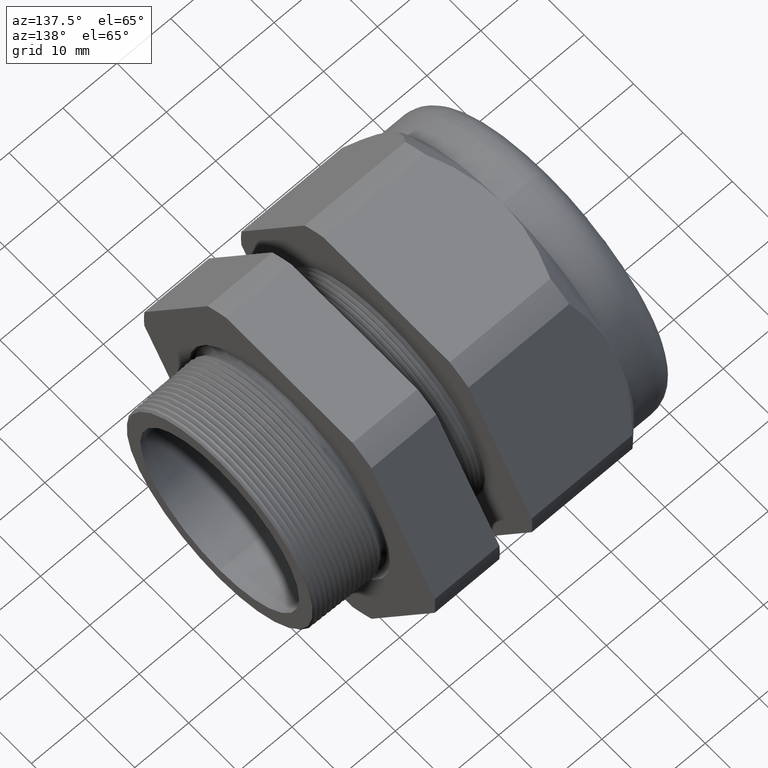
[diagram: clean part render]
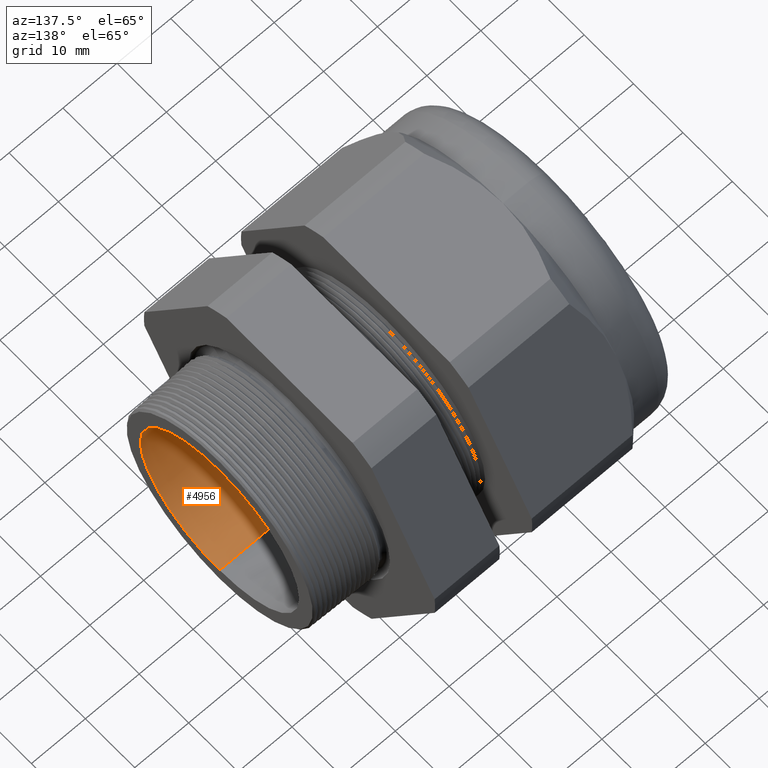
[diagram: same view with one face highlighted and labeled with its STEP entity id]
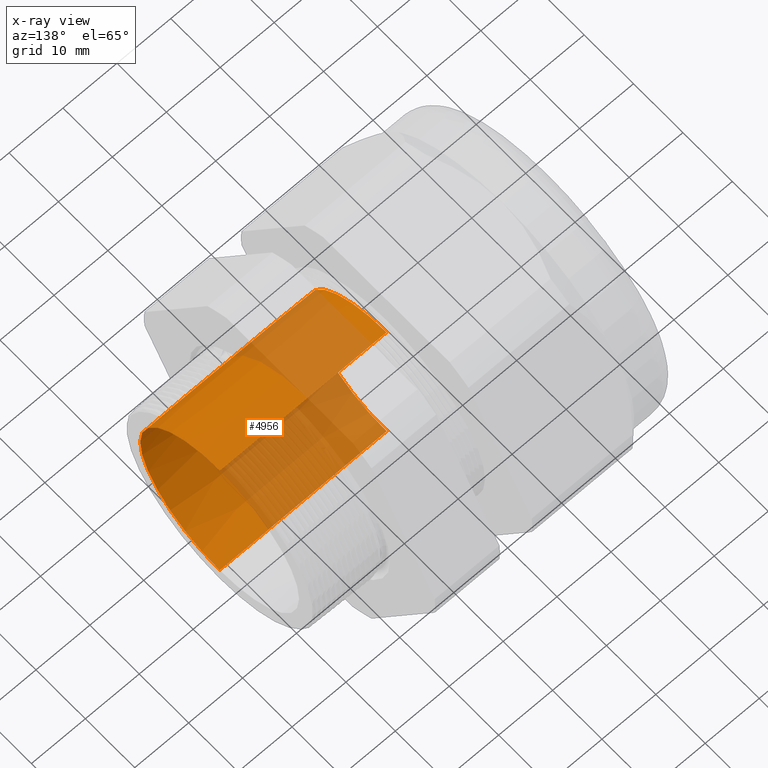
[diagram: x-ray of the same camera — body ghosted, the highlighted face saturated]
A machine part, auxiliary view. The second image highlights one B-rep face of the part: STEP entity #4956.
The next image is the same camera in x-ray: the body ghosted, the highlighted face saturated — about 50% of this face is hidden behind the body in this view.
In plain terms, the highlighted conical surface has half-angle 0.145 deg.
Its self-contained STEP definition (entity closure, byte-faithful):
#3197 = CARTESIAN_POINT ( 'NONE',  ( -1.018802799999999800, 0.0000000000000000000, -0.6300000000000000000 ) ) ;
#3257 = DIRECTION ( 'NONE',  ( 0.9999967975839531000, 3.099305439608670900E-019, 0.002530774948145480100 ) ) ;
#3258 = VECTOR ( 'NONE', #3257, 39.37007874015748100 ) ;
#3259 = CARTESIAN_POINT ( 'NONE',  ( -1.018802799999999800, 7.715274834628325400E-017, 0.6300000000000000000 ) ) ;
#3260 = LINE ( 'NONE', #3259, #3258 ) ;
#3285 = CARTESIAN_POINT ( 'NONE',  ( 0.2000000000000000400, 7.753049377076629200E-017, 0.6330845254709034400 ) ) ;
#3298 = DIRECTION ( 'NONE',  ( 0.0000000000000000000, 0.0000000000000000000, -1.000000000000000000 ) ) ;
#3299 = DIRECTION ( 'NONE',  ( 1.000000000000000000, 0.0000000000000000000, 0.0000000000000000000 ) ) ;
#3300 = CARTESIAN_POINT ( 'NONE',  ( -1.018802799999999800, 0.0000000000000000000, 0.0000000000000000000 ) ) ;
#3301 = AXIS2_PLACEMENT_3D ( 'NONE', #3300, #3299, #3298 ) ;
#3302 = CIRCLE ( 'NONE', #3301, 0.6300000000000000000 ) ;
#3309 = CARTESIAN_POINT ( 'NONE',  ( -1.018802799999999800, 7.715274834628325400E-017, 0.6300000000000000000 ) ) ;
#3324 = DIRECTION ( 'NONE',  ( 0.0000000000000000000, 0.0000000000000000000, -1.000000000000000000 ) ) ;
#3325 = DIRECTION ( 'NONE',  ( 1.000000000000000000, 0.0000000000000000000, 0.0000000000000000000 ) ) ;
#3326 = CARTESIAN_POINT ( 'NONE',  ( -1.018802799999999800, 0.0000000000000000000, 0.0000000000000000000 ) ) ;
#3327 = AXIS2_PLACEMENT_3D ( 'NONE', #3326, #3325, #3324 ) ;
#3330 = CONICAL_SURFACE ( 'NONE', #3327, 0.6300000000000000000, 0.002530777649680375600 ) ;
#3331 = FACE_OUTER_BOUND ( 'NONE', #4925, .T. ) ;
#3559 = DIRECTION ( 'NONE',  ( 0.9999967975839531000, 0.0000000000000000000, -0.002530774948145480100 ) ) ;
#3560 = VECTOR ( 'NONE', #3559, 39.37007874015748100 ) ;
#3561 = CARTESIAN_POINT ( 'NONE',  ( -1.018802799999999800, 0.0000000000000000000, -0.6300000000000000000 ) ) ;
#3562 = LINE ( 'NONE', #3561, #3560 ) ;
#3588 = CARTESIAN_POINT ( 'NONE',  ( 0.2000000000000000400, 0.0000000000000000000, -0.6330845254709034400 ) ) ;
#3589 = DIRECTION ( 'NONE',  ( 0.0000000000000000000, 0.0000000000000000000, -1.000000000000000000 ) ) ;
#3590 = DIRECTION ( 'NONE',  ( 1.000000000000000000, 0.0000000000000000000, 0.0000000000000000000 ) ) ;
#3591 = CARTESIAN_POINT ( 'NONE',  ( 0.2000000000000000400, 0.0000000000000000000, 0.0000000000000000000 ) ) ;
#3592 = AXIS2_PLACEMENT_3D ( 'NONE', #3591, #3590, #3589 ) ;
#3593 = CIRCLE ( 'NONE', #3592, 0.6330845254709034400 ) ;
#4682 = ORIENTED_EDGE ( 'NONE', *, *, #5085, .T. ) ;
#4876 = VERTEX_POINT ( 'NONE', #3197 ) ;
#4892 = VERTEX_POINT ( 'NONE', #3285 ) ;
#4909 = ORIENTED_EDGE ( 'NONE', *, *, #4910, .T. ) ;
#4910 = EDGE_CURVE ( 'NONE', #4918, #4892, #3260, .T. ) ;
#4918 = VERTEX_POINT ( 'NONE', #3309 ) ;
#4925 = EDGE_LOOP ( 'NONE', ( #4927, #4909, #4682, #5048 ) ) ;
#4926 = EDGE_CURVE ( 'NONE', #4918, #4876, #3302, .T. ) ;
#4927 = ORIENTED_EDGE ( 'NONE', *, *, #4926, .F. ) ;
#4956 = ADVANCED_FACE ( 'NONE', ( #3331 ), #3330, .F. ) ;
#5048 = ORIENTED_EDGE ( 'NONE', *, *, #5069, .F. ) ;
#5069 = EDGE_CURVE ( 'NONE', #4876, #5086, #3562, .T. ) ;
#5085 = EDGE_CURVE ( 'NONE', #4892, #5086, #3593, .T. ) ;
#5086 = VERTEX_POINT ( 'NONE', #3588 ) ;